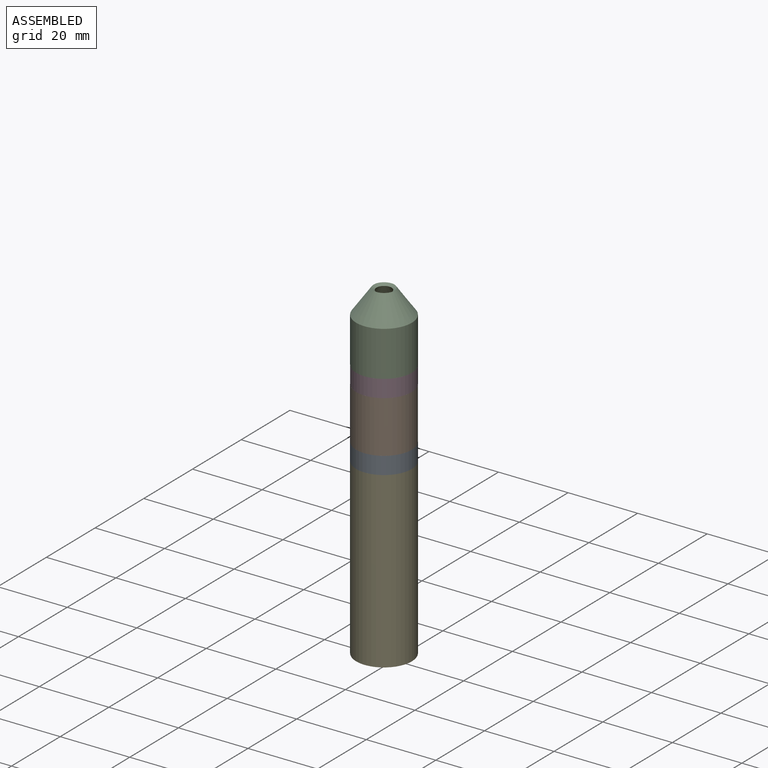
[diagram: assembled view]
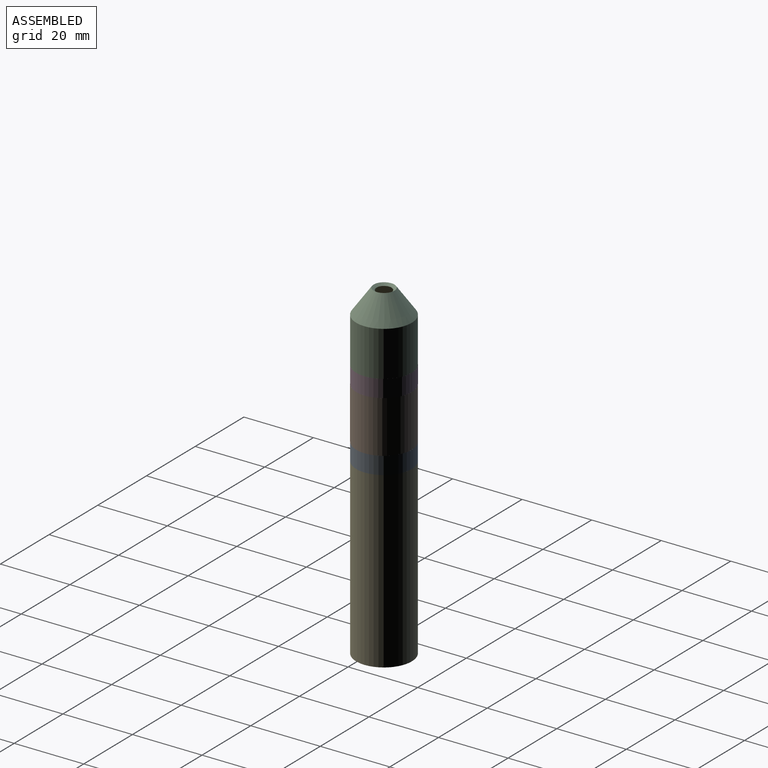
[diagram: assembled view, second angle]
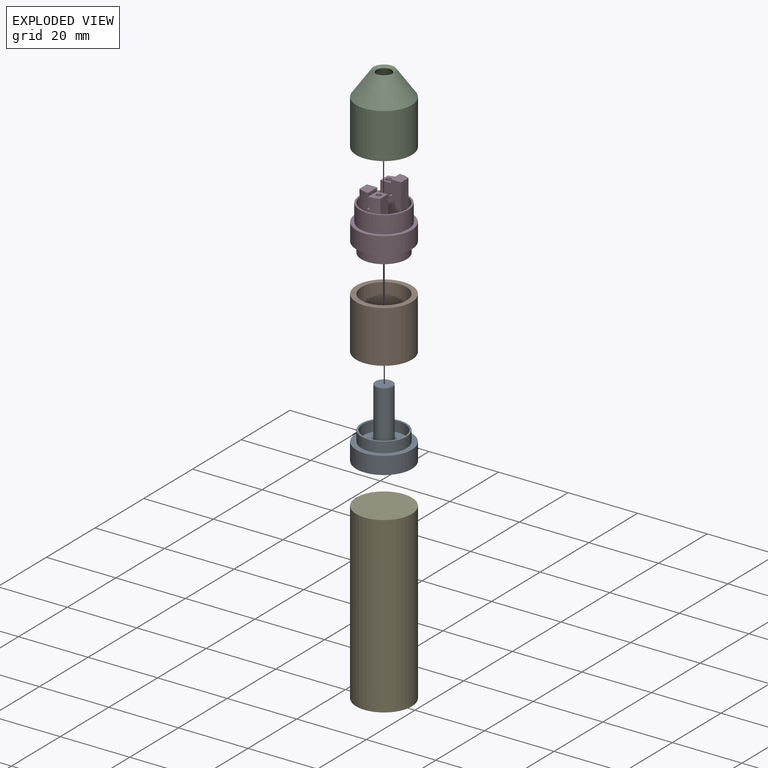
[diagram: exploded view]
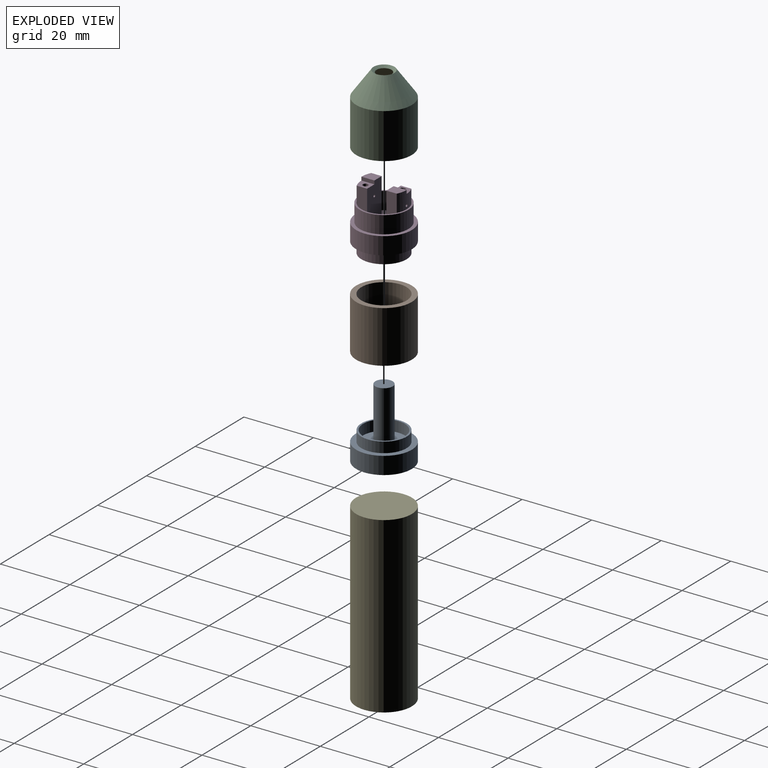
[diagram: exploded view, second angle]
ASSEMBLY  parts=5 mates=4
PART A: 9 faces, bbox 16x16x20 mm
  f0: cylinder r=8mm len=16mm, axis (0,0,1), area 251.3mm2, adj f1,f2
  f1: plane 16x16mm, normal (0,0,-1), area 201.1mm2, adj f0
  f2: plane 16x16mm, normal (0,0,1), area 68.3mm2, adj f0,f4
  f3: cylinder r=6mm len=12mm, axis (0,0,-1), area 113.1mm2, adj f5,f6
  f4: cylinder r=6.5mm len=13mm, axis (0,0,-1), area 122.5mm2, adj f2,f5
  f5: plane 13x13mm, normal (0,0,1), area 19.6mm2, adj f3,f4
  f6: plane 12x12mm, normal (0,0,1), area 93.5mm2, adj f3,f7
  f7: cylinder r=2.5mm len=15mm, axis (0,0,-1), area 235.6mm2, adj f6,f8
  f8: plane 5x5mm, normal (0,0,1), area 19.6mm2, adj f7
PART B: 4 faces, bbox 16x16x15 mm
  f0: cylinder r=6.5mm len=15mm, axis (0,0,-1), area 612.6mm2, adj f2,f3
  f1: cylinder r=8mm len=16mm, axis (0,0,-1), area 754mm2, adj f2,f3
  f2: plane 16x16mm, normal (0,0,1), area 68.3mm2, adj f0,f1
  f3: plane 16x16mm, normal (0,0,-1), area 68.3mm2, adj f0,f1
PART C: 7 faces, bbox 16x16x20 mm
  f0: plane 16x16mm, normal (0,0,-1), area 47.1mm2, adj f1,f5
  f1: cylinder r=7mm len=14mm, axis (0,0,-1), area 515.4mm2, adj f0,f6
  f2: cone r=7mm half-angle=35.5deg, axis (0,0,-1), area 198.4mm2, adj f3,f6
  f3: cone r=3mm half-angle=54.5deg, axis (0,0,1), area 16.3mm2, adj f2,f4
  f4: cone r=8mm half-angle=35.5deg, axis (0,0,-1), area 297.3mm2, adj f3,f5
  f5: cylinder r=8mm len=16mm, axis (0,0,-1), area 653.5mm2, adj f0,f4
  f6: torus R=4mm, axis (0,0,-1), area 79.6mm2, adj f1,f2
PART D: 34 faces, bbox 16x16x18 mm
  f0: plane 9x3mm, normal (1,0,0), area 27mm2, adj f1,f7,f15,f22,f31
  f1: plane 10x6mm, normal (0,1,0), area 56.6mm2, adj f0,f2,f7,f23,f25,f30,f31
  f2: plane 3.73x3mm, normal (0,0,1), area 10.5mm2, adj f1,f22,f23,f30
  f3: plane 9x3mm, normal (-1,0,0), area 27mm2, adj f4,f6,f7,f20,f27
  f4: plane 10x6mm, normal (0,-1,0), area 56.6mm2, adj f3,f5,f7,f21,f24,f26,f27
  f5: plane 3.73x3mm, normal (0,0,1), area 10.5mm2, adj f4,f20,f21,f26
  f6: cylinder r=6.5mm len=11.53mm, axis (0,0,-1), area 70.9mm2, adj f3,f7,f17,f23
  f7: plane 13x11.53mm, normal (0,0,1), area 81mm2, adj f0,f1,f3,f4,f6,f15,f18,f19
  f8: cylinder r=8mm len=16mm, axis (0,0,1), area 251.3mm2, adj f9,f10
  f9: plane 16x16mm, normal (0,0,-1), area 68.3mm2, adj f8,f12
  f10: plane 16x16mm, normal (0,0,1), area 47.1mm2, adj f8,f16
  f11: cylinder r=6mm len=12mm, axis (0,0,1), area 113.1mm2, adj f13,f14
  f12: cylinder r=6.5mm len=13mm, axis (0,0,1), area 122.5mm2, adj f9,f13
  f13: plane 13x13mm, normal (0,0,-1), area 19.6mm2, adj f11,f12
  f14: plane 12x12mm, normal (0,0,-1), area 103.3mm2, adj f11,f18,f19
  f15: cylinder r=6.5mm len=11.53mm, axis (0,0,-1), area 70.9mm2, adj f0,f7,f17,f21
  f16: cylinder r=7mm len=14mm, axis (0,0,-1), area 219.9mm2, adj f10,f17
  f17: plane 14x14mm, normal (0,0,1), area 21.2mm2, adj f6,f15,f16,f20,f22
  f18: cylinder r=1.25mm len=5mm, axis (0,0,1), area 39.3mm2, adj f7,f14
  f19: cylinder r=1.25mm len=5mm, axis (0,0,1), area 39.3mm2, adj f7,f14
  f20: cylinder r=6.5mm len=6mm, axis (0,0,-1), area 27.7mm2, adj f3,f5,f17,f21,f24,f26,f27
  f21: plane 10x3mm, normal (1,0,0), area 30mm2, adj f4,f5,f7,f15,f20
  f22: cylinder r=6.5mm len=6mm, axis (0,0,-1), area 27.7mm2, adj f0,f2,f17,f23,f25,f30,f31
  f23: plane 10x3mm, normal (-1,0,0), area 30mm2, adj f1,f2,f6,f7,f22
  f24: cylinder r=0.35mm len=3.73mm, axis (0,-1,0), area 8.2mm2, adj f4,f20
  f25: cylinder r=0.35mm len=3.73mm, axis (0,1,0), area 8.2mm2, adj f1,f22
  f26: plane 3.73x1mm, normal (-1,0,0), area 3.7mm2, adj f4,f5,f20,f27
  f27: plane 3.73x3mm, normal (0,0,1), area 7.8mm2, adj f3,f4,f20,f26,f28
  f28: cylinder r=0.92mm len=2mm, axis (0,0,1), area 11.5mm2, adj f27,f29
  f29: plane 1.84x1.84mm, normal (0,0,1), area 2.6mm2, adj f28
  f30: plane 3.73x1mm, normal (1,0,0), area 3.7mm2, adj f1,f2,f22,f31
  f31: plane 3.73x3mm, normal (0,0,1), area 8.7mm2, adj f0,f1,f22,f30,f32
  f32: cylinder r=0.75mm len=2mm, axis (0,0,1), area 9.4mm2, adj f31,f33
  f33: plane 1.5x1.5mm, normal (0,0,1), area 1.8mm2, adj f32
PART E: 3 faces, bbox 16x16x50 mm
  f0: cylinder r=8mm len=50mm, axis (0,0,-1), area 2513.3mm2, adj f1,f2
  f1: plane 16x16mm, normal (0,0,1), area 201.1mm2, adj f0
  f2: plane 16x16mm, normal (0,0,-1), area 201.1mm2, adj f0
PLACE A at identity
PLACE B t=(79.35,57.82,0)mm
PLACE C t=(69.18,38.73,71.59)mm
PLACE D t=(49.96,6.94,20)mm
PLACE E t=(82.1,-1.84,-55)mm
MATE parallel E.f0 <-> A.f0  axis (0,0,1) through (31.99,38.73,-5)mm
MATE slider B.f0 <-> A.f0  axis (0,0,-1) through (31.99,38.73,0)mm
MATE parallel D.f6 <-> A.f0  axis (0,0,-1) through (31.99,38.73,15)mm
MATE parallel C.f1 <-> D.f6  axis (0,0,-1) through (31.99,38.73,20)mm
